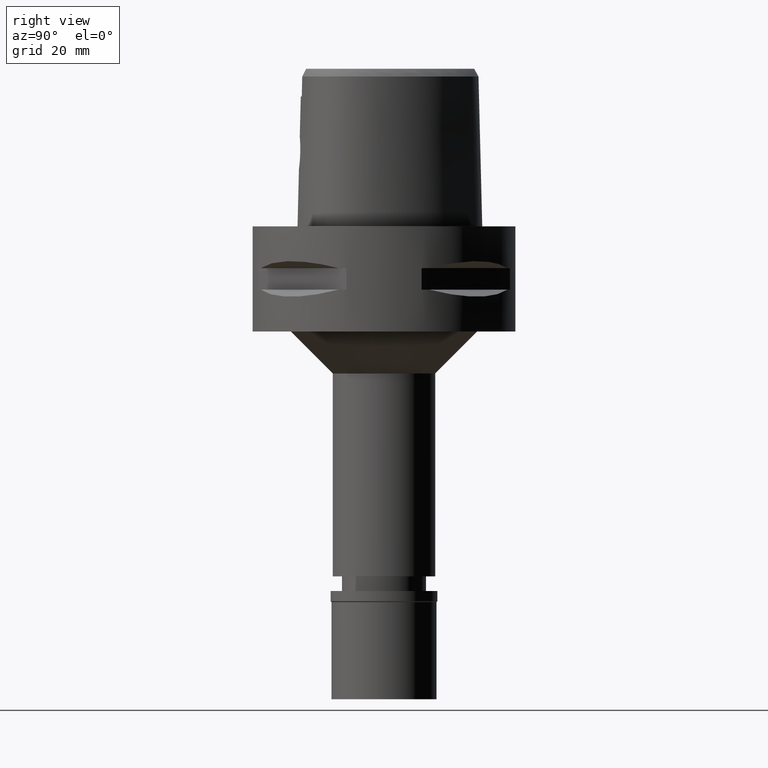
[diagram: clean part render]
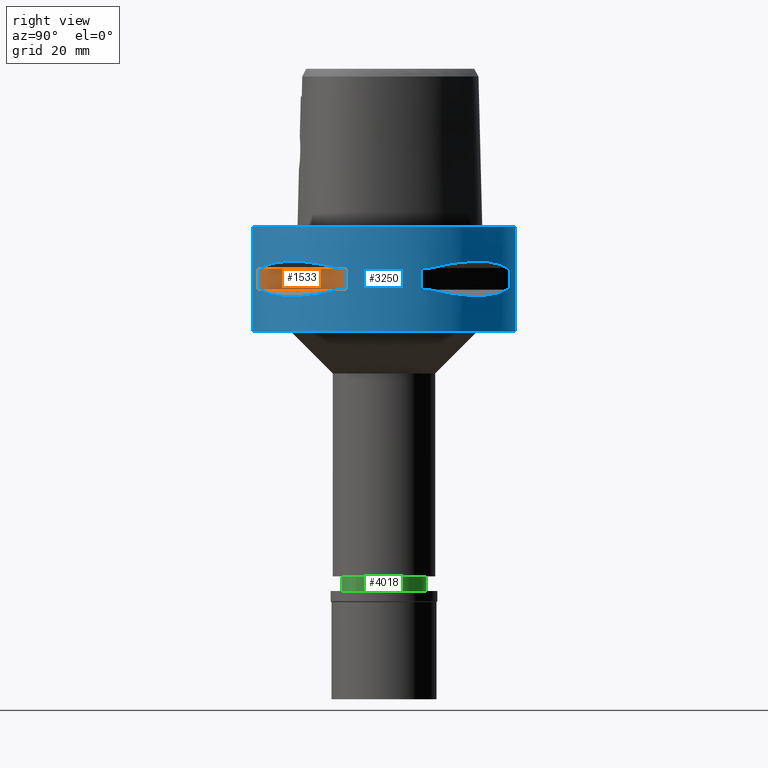
[diagram: same view with three faces highlighted in distinct colors, each labeled with its STEP entity id]
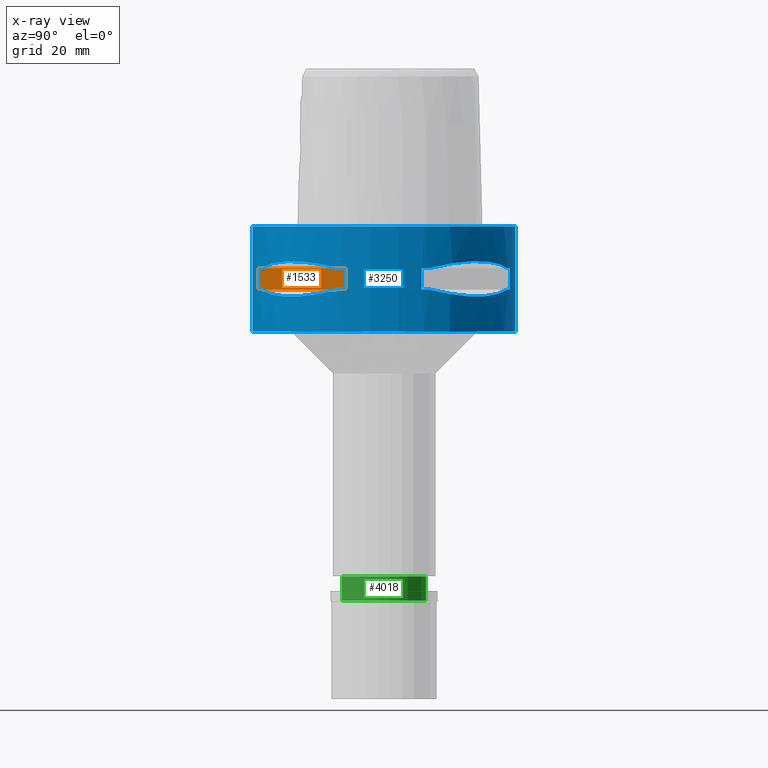
[diagram: x-ray of the same camera — body ghosted, the three highlighted faces saturated]
A machine part, right view with three faces highlighted in distinct colors.
The next image is the same camera in x-ray (body ghosted, the three faces saturated) — at least one of them is partly hidden behind the body in this view.
Their STEP definitions:

[orange] entity #1533 — the highlighted planar face has unit normal (-0.7071, 0.7071, 0).
#42 = CARTESIAN_POINT ( 'NONE',  ( 7.159921374230999724, -23.95277699797999915, -7.950000000000000178 ) ) ;
#336 = EDGE_CURVE ( 'NONE', #2697, #411, #3253, .T. ) ;
#411 = VERTEX_POINT ( 'NONE', #4355 ) ;
#518 = CARTESIAN_POINT ( 'NONE',  ( 23.95277699797999915, -7.159921374235000080, -12.05000000000000071 ) ) ;
#941 = DIRECTION ( 'NONE',  ( 0.7071067811865474617, 0.7071067811865474617, 0.0000000000000000000 ) ) ;
#1100 = CARTESIAN_POINT ( 'NONE',  ( 23.95277699797999915, -7.159921374230999724, -7.950000000000000178 ) ) ;
#1126 = LINE ( 'NONE', #42, #3144 ) ;
#1456 = EDGE_CURVE ( 'NONE', #2697, #1659, #1126, .T. ) ;
#1533 = ADVANCED_FACE ( 'NONE', ( #4295 ), #4712, .F. ) ;
#1570 = DIRECTION ( 'NONE',  ( 0.7071067811865474617, 0.7071067811865474617, 0.0000000000000000000 ) ) ;
#1659 = VERTEX_POINT ( 'NONE', #1100 ) ;
#1717 = DIRECTION ( 'NONE',  ( 0.0000000000000000000, 0.0000000000000000000, -1.000000000000000000 ) ) ;
#1772 = DIRECTION ( 'NONE',  ( 0.0000000000000000000, 0.0000000000000000000, 1.000000000000000000 ) ) ;
#1778 = ORIENTED_EDGE ( 'NONE', *, *, #336, .T. ) ;
#1885 = AXIS2_PLACEMENT_3D ( 'NONE', #2405, #2868, #4764 ) ;
#2014 = CARTESIAN_POINT ( 'NONE',  ( 7.159921374230999724, -23.95277699797999915, -12.05000000000000071 ) ) ;
#2042 = EDGE_CURVE ( 'NONE', #4400, #1659, #4469, .T. ) ;
#2405 = CARTESIAN_POINT ( 'NONE',  ( 26.16295090389999700, -4.949747468305999654, -7.950000000000000178 ) ) ;
#2491 = CARTESIAN_POINT ( 'NONE',  ( 7.159921374230999724, -23.95277699797999915, -7.950000000000000178 ) ) ;
#2586 = VECTOR ( 'NONE', #1717, 1000.000000000000000 ) ;
#2697 = VERTEX_POINT ( 'NONE', #3585 ) ;
#2717 = EDGE_CURVE ( 'NONE', #411, #4400, #2840, .T. ) ;
#2737 = VECTOR ( 'NONE', #941, 1000.000000000000114 ) ;
#2840 = LINE ( 'NONE', #2014, #2737 ) ;
#2868 = DIRECTION ( 'NONE',  ( -0.7071067811865475727, 0.7071067811865475727, 0.0000000000000000000 ) ) ;
#3144 = VECTOR ( 'NONE', #1570, 1000.000000000000114 ) ;
#3253 = LINE ( 'NONE', #2491, #2586 ) ;
#3308 = ORIENTED_EDGE ( 'NONE', *, *, #1456, .F. ) ;
#3585 = CARTESIAN_POINT ( 'NONE',  ( 7.159921374235000080, -23.95277699797999915, -7.950000000000000178 ) ) ;
#3618 = ORIENTED_EDGE ( 'NONE', *, *, #2042, .T. ) ;
#3760 = ORIENTED_EDGE ( 'NONE', *, *, #2717, .T. ) ;
#4094 = CARTESIAN_POINT ( 'NONE',  ( 23.95277699797999915, -7.159921374230999724, -12.05000000000000071 ) ) ;
#4167 = EDGE_LOOP ( 'NONE', ( #3308, #1778, #3760, #3618 ) ) ;
#4295 = FACE_OUTER_BOUND ( 'NONE', #4167, .T. ) ;
#4355 = CARTESIAN_POINT ( 'NONE',  ( 7.159921374230999724, -23.95277699797999915, -12.05000000000000071 ) ) ;
#4400 = VERTEX_POINT ( 'NONE', #518 ) ;
#4431 = VECTOR ( 'NONE', #1772, 1000.000000000000000 ) ;
#4469 = LINE ( 'NONE', #4094, #4431 ) ;
#4712 = PLANE ( 'NONE',  #1885 ) ;
#4764 = DIRECTION ( 'NONE',  ( 0.0000000000000000000, 0.0000000000000000000, 1.000000000000000000 ) ) ;

[blue] entity #3250 — the highlighted cylindrical surface (partial cylindrical patch) has radius 25 mm, axis along (0, 0, -1).
#23 = CARTESIAN_POINT ( 'NONE',  ( 8.646484890751999330, 23.45715880140000209, -12.05000000000000071 ) ) ;
#87 = CARTESIAN_POINT ( 'NONE',  ( 10.36314631865839964, -22.82438450743505598, -7.507504930511911923 ) ) ;
#110 = CIRCLE ( 'NONE', #187, 25.00000000000001066 ) ;
#118 = EDGE_CURVE ( 'NONE', #2697, #4893, #3695, .T. ) ;
#159 = CARTESIAN_POINT ( 'NONE',  ( 21.20561591939435786, 13.24197703503935486, -13.00691327926270446 ) ) ;
#175 = DIRECTION ( 'NONE',  ( 0.9581110799190402094, -0.2863968549694120291, 0.0000000000000000000 ) ) ;
#187 = AXIS2_PLACEMENT_3D ( 'NONE', #707, #2234, #3751 ) ;
#194 = CIRCLE ( 'NONE', #2683, 25.00000000000001066 ) ;
#210 = CARTESIAN_POINT ( 'NONE',  ( 23.13678124604550845, 9.515641234313701347, -12.27403800213050111 ) ) ;
#268 = CARTESIAN_POINT ( 'NONE',  ( 8.646484890751999330, 23.45715880140000209, -7.949999999998999201 ) ) ;
#297 = DIRECTION ( 'NONE',  ( 0.2863968549694120291, -0.9581110799190402094, 0.0000000000000000000 ) ) ;
#327 = DIRECTION ( 'NONE',  ( 0.9581110799190402094, 0.2863968549694120291, 0.0000000000000000000 ) ) ;
#336 = EDGE_CURVE ( 'NONE', #2697, #411, #3253, .T. ) ;
#342 = ORIENTED_EDGE ( 'NONE', *, *, #1264, .T. ) ;
#357 = ORIENTED_EDGE ( 'NONE', *, *, #703, .T. ) ;
#388 = ORIENTED_EDGE ( 'NONE', *, *, #663, .F. ) ;
#411 = VERTEX_POINT ( 'NONE', #4355 ) ;
#418 = CARTESIAN_POINT ( 'NONE',  ( 0.0000000000000000000, 1.274857317911999787E-14, -7.950000000000000178 ) ) ;
#439 = CARTESIAN_POINT ( 'NONE',  ( 13.60713573003037880, 20.97251445226597966, -13.06082541678103404 ) ) ;
#449 = VERTEX_POINT ( 'NONE', #690 ) ;
#513 = VECTOR ( 'NONE', #766, 1000.000000000000000 ) ;
#518 = CARTESIAN_POINT ( 'NONE',  ( 23.95277699797999915, -7.159921374235000080, -12.05000000000000071 ) ) ;
#524 = CIRCLE ( 'NONE', #1487, 24.99999999999999645 ) ;
#533 = CARTESIAN_POINT ( 'NONE',  ( 0.0000000000000000000, 1.274857317911999787E-14, -12.05000000000000071 ) ) ;
#572 = ORIENTED_EDGE ( 'NONE', *, *, #3749, .T. ) ;
#600 = VERTEX_POINT ( 'NONE', #1464 ) ;
#629 = VERTEX_POINT ( 'NONE', #1084 ) ;
#645 = CARTESIAN_POINT ( 'NONE',  ( 21.99328990740119139, -12.03062603421341770, -12.83394786307044022 ) ) ;
#653 = VERTEX_POINT ( 'NONE', #713 ) ;
#663 = EDGE_CURVE ( 'NONE', #4298, #653, #1894, .T. ) ;
#690 = CARTESIAN_POINT ( 'NONE',  ( 0.0000000000000000000, -25.00000000000000000, 0.0000000000000000000 ) ) ;
#703 = EDGE_CURVE ( 'NONE', #1738, #3215, #4196, .T. ) ;
#707 = CARTESIAN_POINT ( 'NONE',  ( 0.0000000000000000000, 1.274857317911999787E-14, -12.05000000000000071 ) ) ;
#713 = CARTESIAN_POINT ( 'NONE',  ( 23.95277699797999915, 7.159921374230999724, -12.05000000000000071 ) ) ;
#735 = FACE_OUTER_BOUND ( 'NONE', #3155, .T. ) ;
#740 = DIRECTION ( 'NONE',  ( 0.0000000000000000000, 0.0000000000000000000, 1.000000000000000000 ) ) ;
#766 = DIRECTION ( 'NONE',  ( 0.0000000000000000000, 0.0000000000000000000, -1.000000000000000000 ) ) ;
#813 = CARTESIAN_POINT ( 'NONE',  ( 23.45715880140000209, -8.646484890751999330, -7.949999999998999201 ) ) ;
#833 = EDGE_CURVE ( 'NONE', #4893, #3885, #1225, .T. ) ;
#835 = CARTESIAN_POINT ( 'NONE',  ( 22.82437128824116712, -10.36318218117755841, -7.507495686413086844 ) ) ;
#927 = DIRECTION ( 'NONE',  ( 0.0000000000000000000, 0.0000000000000000000, -1.000000000000000000 ) ) ;
#955 = ORIENTED_EDGE ( 'NONE', *, *, #3807, .T. ) ;
#992 = CARTESIAN_POINT ( 'NONE',  ( 20.97251445226583755, -13.60713573003076071, -13.06082541678112641 ) ) ;
#1052 = CARTESIAN_POINT ( 'NONE',  ( 0.0000000000000000000, 1.274857317911999787E-14, -20.00000000000000000 ) ) ;
#1059 = EDGE_CURVE ( 'NONE', #4400, #2320, #1636, .T. ) ;
#1068 = CARTESIAN_POINT ( 'NONE',  ( 10.36318218122983481, 22.82437128822192207, -7.507495686399606960 ) ) ;
#1084 = CARTESIAN_POINT ( 'NONE',  ( 0.0000000000000000000, 25.00000000000000000, 0.0000000000000000000 ) ) ;
#1090 = CARTESIAN_POINT ( 'NONE',  ( 20.56020460723486565, -14.22535762328174691, -13.14488865845287080 ) ) ;
#1096 = CARTESIAN_POINT ( 'NONE',  ( 16.42437865151178045, 18.93096040781560063, -6.622496303226939496 ) ) ;
#1100 = CARTESIAN_POINT ( 'NONE',  ( 23.95277699797999915, -7.159921374230999724, -7.950000000000000178 ) ) ;
#1154 = ORIENTED_EDGE ( 'NONE', *, *, #336, .F. ) ;
#1165 = CARTESIAN_POINT ( 'NONE',  ( 20.06074199769976829, -15.02698525043415145, -6.733118915137212390 ) ) ;
#1198 = CARTESIAN_POINT ( 'NONE',  ( 7.159921374235000080, 23.95277699797999915, -12.05000000000000071 ) ) ;
#1201 = CARTESIAN_POINT ( 'NONE',  ( 13.90573822668135406, 20.77616787493428774, -13.10257122103294058 ) ) ;
#1203 = DIRECTION ( 'NONE',  ( 0.0000000000000000000, 0.0000000000000000000, -1.000000000000000000 ) ) ;
#1225 = B_SPLINE_CURVE_WITH_KNOTS ( 'NONE', 3,
 ( #2733, #87, #3434, #4586, #1936, #3123, #1165, #3881, #835, #2412 ),
 .UNSPECIFIED., .F., .F.,
 ( 4, 2, 2, 2, 4 ),
 ( 0.0000000000000000000, 0.2500000000000000000, 0.5000000000000000000, 0.7500000000000000000, 1.000000000000000000 ),
 .UNSPECIFIED. ) ;
#1231 = AXIS2_PLACEMENT_3D ( 'NONE', #1052, #2585, #4898 ) ;
#1264 = EDGE_CURVE ( 'NONE', #3915, #4880, #3074, .T. ) ;
#1315 = AXIS2_PLACEMENT_3D ( 'NONE', #3566, #2399, #3913 ) ;
#1355 = CARTESIAN_POINT ( 'NONE',  ( 21.00321793043583796, 13.55971422200765630, -13.05400030967367897 ) ) ;
#1362 = CARTESIAN_POINT ( 'NONE',  ( 13.55971422200820520, -21.00321793043535479, -13.05400030967370206 ) ) ;
#1421 = CARTESIAN_POINT ( 'NONE',  ( 20.88268233906207172, -13.74471461761599400, -13.08031795579753087 ) ) ;
#1429 = ORIENTED_EDGE ( 'NONE', *, *, #2774, .F. ) ;
#1447 = CARTESIAN_POINT ( 'NONE',  ( 15.02698525050126044, 20.06074199764951871, -6.733118915116993008 ) ) ;
#1452 = ORIENTED_EDGE ( 'NONE', *, *, #3186, .T. ) ;
#1464 = CARTESIAN_POINT ( 'NONE',  ( 23.45715880140000209, 8.646484890751999330, -7.949999999998999201 ) ) ;
#1476 = CARTESIAN_POINT ( 'NONE',  ( 20.06077645874710313, 15.02693924547574866, -6.733132781305682713 ) ) ;
#1487 = AXIS2_PLACEMENT_3D ( 'NONE', #4522, #4886, #327 ) ;
#1512 = B_SPLINE_CURVE_WITH_KNOTS ( 'NONE', 3,
 ( #4044, #1826, #2989, #3311, #4838, #2601, #1794, #4068, #3357, #1362, #4408, #2549, #1849, #3664, #4518, #1090, #4440, #1421, #2881, #2938, #992, #645, #2172, #3335 ),
 .UNSPECIFIED., .F., .F.,
 ( 4, 1, 1, 1, 1, 1, 2, 2, 2, 1, 1, 1, 1, 1, 2, 2, 4 ),
 ( 0.0000000000000000000, 0.1250000000000068834, 0.1875000000000101308, 0.2187500000000117406, 0.2343750000000125733, 0.2421875000000129341, 0.2460937500000130174, 0.2500000000000131006, 0.5000000000000111022, 0.6250000000000101030, 0.6875000000000099920, 0.7187500000000099920, 0.7343750000000099920, 0.7421875000000098810, 0.7460937500000098810, 0.7500000000000098810, 1.000000000000000000 ),
 .UNSPECIFIED. ) ;
#1520 = FACE_BOUND ( 'NONE', #4693, .T. ) ;
#1556 = AXIS2_PLACEMENT_3D ( 'NONE', #2547, #740, #297 ) ;
#1563 = CARTESIAN_POINT ( 'NONE',  ( 7.159921374230999724, 23.95277699797999915, -12.05000000000000071 ) ) ;
#1590 = ORIENTED_EDGE ( 'NONE', *, *, #3220, .T. ) ;
#1591 = CARTESIAN_POINT ( 'NONE',  ( 0.0000000000000000000, 25.00000000000000000, -20.00000000000000000 ) ) ;
#1610 = CARTESIAN_POINT ( 'NONE',  ( 16.07509500019029502, 19.18226349638565509, -13.33749867751885532 ) ) ;
#1636 = CIRCLE ( 'NONE', #4897, 24.99999999999999645 ) ;
#1659 = VERTEX_POINT ( 'NONE', #1100 ) ;
#1717 = DIRECTION ( 'NONE',  ( 0.0000000000000000000, 0.0000000000000000000, -1.000000000000000000 ) ) ;
#1738 = VERTEX_POINT ( 'NONE', #1198 ) ;
#1740 = CARTESIAN_POINT ( 'NONE',  ( 21.41803043591995959, 12.89853354823032738, -12.95342092614324869 ) ) ;
#1758 = ORIENTED_EDGE ( 'NONE', *, *, #2042, .F. ) ;
#1772 = DIRECTION ( 'NONE',  ( 0.0000000000000000000, 0.0000000000000000000, 1.000000000000000000 ) ) ;
#1794 = CARTESIAN_POINT ( 'NONE',  ( 13.41274673326371314, -21.09754014382099285, -13.03250796600744721 ) ) ;
#1808 = EDGE_CURVE ( 'NONE', #629, #449, #3713, .T. ) ;
#1826 = CARTESIAN_POINT ( 'NONE',  ( 9.515641234297431694, -23.13678124605150188, -12.27403800212630536 ) ) ;
#1849 = CARTESIAN_POINT ( 'NONE',  ( 18.30096971348435630, -17.05439749817190176, -13.37751056790094850 ) ) ;
#1863 = CARTESIAN_POINT ( 'NONE',  ( 0.0000000000000000000, 1.274857317911999787E-14, 4.100000000000000533 ) ) ;
#1865 = EDGE_CURVE ( 'NONE', #600, #2729, #4141, .T. ) ;
#1893 = CYLINDRICAL_SURFACE ( 'NONE', #2987, 25.00000000000000000 ) ;
#1894 = LINE ( 'NONE', #2242, #513 ) ;
#1931 = ORIENTED_EDGE ( 'NONE', *, *, #2539, .F. ) ;
#1935 = DIRECTION ( 'NONE',  ( 0.9382863520558295534, 0.3458593956303108730, 0.0000000000000000000 ) ) ;
#1936 = CARTESIAN_POINT ( 'NONE',  ( 16.42437865147233111, -18.93096040785503220, -6.622505547239577517 ) ) ;
#1937 = CARTESIAN_POINT ( 'NONE',  ( 0.0000000000000000000, -25.00000000000000000, -20.00000000000000000 ) ) ;
#1939 = VERTEX_POINT ( 'NONE', #2552 ) ;
#1954 = EDGE_CURVE ( 'NONE', #4298, #600, #524, .T. ) ;
#2042 = EDGE_CURVE ( 'NONE', #4400, #1659, #4469, .T. ) ;
#2073 = CARTESIAN_POINT ( 'NONE',  ( 23.45715880140000209, -8.646484890751999330, -12.05000000000000071 ) ) ;
#2143 = EDGE_CURVE ( 'NONE', #1738, #3098, #3045, .T. ) ;
#2169 = ORIENTED_EDGE ( 'NONE', *, *, #2143, .F. ) ;
#2172 = CARTESIAN_POINT ( 'NONE',  ( 22.81626994452193458, -10.38516041956038727, -12.49816953211166037 ) ) ;
#2188 = CARTESIAN_POINT ( 'NONE',  ( 13.62920640916679993, 20.95817024473859291, -13.06397973560673265 ) ) ;
#2190 = DIRECTION ( 'NONE',  ( 0.0000000000000000000, 0.0000000000000000000, -1.000000000000000000 ) ) ;
#2217 = CARTESIAN_POINT ( 'NONE',  ( 12.03062603423778754, 21.99328990739221013, -12.83394786307672675 ) ) ;
#2234 = DIRECTION ( 'NONE',  ( 0.0000000000000000000, 0.0000000000000000000, -1.000000000000000000 ) ) ;
#2241 = DIRECTION ( 'NONE',  ( 0.9382863520558295534, -0.3458593956303108730, 0.0000000000000000000 ) ) ;
#2242 = CARTESIAN_POINT ( 'NONE',  ( 23.95277699797999915, 7.159921374230999724, -7.950000000000000178 ) ) ;
#2283 = AXIS2_PLACEMENT_3D ( 'NONE', #4142, #2663, #1935 ) ;
#2295 = CARTESIAN_POINT ( 'NONE',  ( 0.0000000000000000000, 1.274857317911999787E-14, -12.05000000000000071 ) ) ;
#2320 = VERTEX_POINT ( 'NONE', #2073 ) ;
#2388 = DIRECTION ( 'NONE',  ( 0.2863968549694120291, 0.9581110799190402094, 0.0000000000000000000 ) ) ;
#2399 = DIRECTION ( 'NONE',  ( 0.0000000000000000000, 0.0000000000000000000, -1.000000000000000000 ) ) ;
#2412 = CARTESIAN_POINT ( 'NONE',  ( 23.45715880140000209, -8.646484890751999330, -7.949999999998999201 ) ) ;
#2431 = AXIS2_PLACEMENT_3D ( 'NONE', #3283, #3609, #3313 ) ;
#2489 = CARTESIAN_POINT ( 'NONE',  ( 23.45715880140000209, 8.646484890756999775, -12.05000000000000071 ) ) ;
#2491 = CARTESIAN_POINT ( 'NONE',  ( 7.159921374230999724, -23.95277699797999915, -7.950000000000000178 ) ) ;
#2515 = CARTESIAN_POINT ( 'NONE',  ( 17.05439749817592343, 18.30096971347850499, -13.37751056790020598 ) ) ;
#2516 = CARTESIAN_POINT ( 'NONE',  ( 0.0000000000000000000, -25.00000000000000000, 0.0000000000000000000 ) ) ;
#2539 = EDGE_CURVE ( 'NONE', #629, #4880, #3516, .T. ) ;
#2547 = CARTESIAN_POINT ( 'NONE',  ( 0.0000000000000000000, 1.274857317911999787E-14, -7.950000000000000178 ) ) ;
#2549 = CARTESIAN_POINT ( 'NONE',  ( 16.43106916202457057, -18.92421359264944769, -13.37747608848233760 ) ) ;
#2552 = CARTESIAN_POINT ( 'NONE',  ( 8.646484890756999775, -23.45715880140000209, -12.05000000000000071 ) ) ;
#2566 = CARTESIAN_POINT ( 'NONE',  ( 7.159921374230999724, 23.95277699797999915, -7.950000000000000178 ) ) ;
#2576 = CARTESIAN_POINT ( 'NONE',  ( 18.93096040781554024, 16.42437865151185505, -6.622505547253058289 ) ) ;
#2585 = DIRECTION ( 'NONE',  ( 0.0000000000000000000, 0.0000000000000000000, 1.000000000000000000 ) ) ;
#2586 = VECTOR ( 'NONE', #1717, 1000.000000000000000 ) ;
#2590 = CARTESIAN_POINT ( 'NONE',  ( 13.67544437571146609, 20.92801700160250533, -13.07054629644086674 ) ) ;
#2601 = CARTESIAN_POINT ( 'NONE',  ( 13.24197703503267931, -21.20561591939681634, -13.00691327926098495 ) ) ;
#2663 = DIRECTION ( 'NONE',  ( 0.0000000000000000000, 0.0000000000000000000, -1.000000000000000000 ) ) ;
#2683 = AXIS2_PLACEMENT_3D ( 'NONE', #418, #4191, #2241 ) ;
#2697 = VERTEX_POINT ( 'NONE', #3585 ) ;
#2706 = CARTESIAN_POINT ( 'NONE',  ( 0.0000000000000000000, 25.00000000000000000, 0.0000000000000000000 ) ) ;
#2711 = CARTESIAN_POINT ( 'NONE',  ( 14.22535762328483067, 20.56020460723039278, -13.14488865845230592 ) ) ;
#2728 = DIRECTION ( 'NONE',  ( 0.0000000000000000000, 0.0000000000000000000, 1.000000000000000000 ) ) ;
#2729 = VERTEX_POINT ( 'NONE', #268 ) ;
#2730 = CARTESIAN_POINT ( 'NONE',  ( 13.74471461761685198, 20.88268233906084248, -13.08031795579737455 ) ) ;
#2733 = CARTESIAN_POINT ( 'NONE',  ( 8.646484890751999330, -23.45715880140000209, -7.949999999998999201 ) ) ;
#2751 = VECTOR ( 'NONE', #3274, 1000.000000000000000 ) ;
#2762 = VECTOR ( 'NONE', #2728, 1000.000000000000000 ) ;
#2774 = EDGE_CURVE ( 'NONE', #1939, #2320, #1512, .T. ) ;
#2822 = AXIS2_PLACEMENT_3D ( 'NONE', #2295, #2190, #2388 ) ;
#2847 = ORIENTED_EDGE ( 'NONE', *, *, #1059, .T. ) ;
#2876 = CARTESIAN_POINT ( 'NONE',  ( 20.02826730452214932, 15.06560254769159712, -13.27075471794772277 ) ) ;
#2881 = CARTESIAN_POINT ( 'NONE',  ( 20.92801700160322298, -13.67544437571097404, -13.07054629644096444 ) ) ;
#2904 = VERTEX_POINT ( 'NONE', #3907 ) ;
#2938 = CARTESIAN_POINT ( 'NONE',  ( 20.95817024473895174, -13.62920640916654591, -13.06397973560678061 ) ) ;
#2987 = AXIS2_PLACEMENT_3D ( 'NONE', #1863, #1203, #3809 ) ;
#2989 = CARTESIAN_POINT ( 'NONE',  ( 10.78455809745186755, -22.58788056562029922, -12.56798337782941566 ) ) ;
#2993 = CARTESIAN_POINT ( 'NONE',  ( 22.00754773658079344, 11.99631184311074428, -7.175632472892017333 ) ) ;
#3001 = ORIENTED_EDGE ( 'NONE', *, *, #3017, .T. ) ;
#3017 = EDGE_CURVE ( 'NONE', #449, #3915, #4434, .T. ) ;
#3044 = ORIENTED_EDGE ( 'NONE', *, *, #118, .T. ) ;
#3045 = LINE ( 'NONE', #1563, #2762 ) ;
#3046 = EDGE_LOOP ( 'NONE', ( #955, #2169, #357, #4327, #1590, #388, #3218, #3300 ) ) ;
#3074 = CIRCLE ( 'NONE', #1231, 25.00000000000000000 ) ;
#3098 = VERTEX_POINT ( 'NONE', #2566 ) ;
#3123 = CARTESIAN_POINT ( 'NONE',  ( 18.93096040785499667, -16.42437865147237730, -6.622496303240421156 ) ) ;
#3155 = EDGE_LOOP ( 'NONE', ( #4765, #3001, #342, #1931 ) ) ;
#3186 = EDGE_CURVE ( 'NONE', #3885, #1659, #194, .T. ) ;
#3215 = VERTEX_POINT ( 'NONE', #23 ) ;
#3218 = ORIENTED_EDGE ( 'NONE', *, *, #1954, .T. ) ;
#3220 = EDGE_CURVE ( 'NONE', #2904, #653, #4423, .T. ) ;
#3250 = ADVANCED_FACE ( 'NONE', ( #735, #1520, #4627 ), #1893, .T. ) ;
#3251 = CARTESIAN_POINT ( 'NONE',  ( 21.05082155772089436, 13.48572973711263323, -13.04323036965343618 ) ) ;
#3253 = LINE ( 'NONE', #2491, #2586 ) ;
#3274 = DIRECTION ( 'NONE',  ( 0.0000000000000000000, 0.0000000000000000000, -1.000000000000000000 ) ) ;
#3283 = CARTESIAN_POINT ( 'NONE',  ( 0.0000000000000000000, 1.274857317911999787E-14, -7.950000000000000178 ) ) ;
#3300 = ORIENTED_EDGE ( 'NONE', *, *, #1865, .T. ) ;
#3311 = CARTESIAN_POINT ( 'NONE',  ( 12.20403021317722292, -21.82791133048418786, -12.83722430138600323 ) ) ;
#3313 = DIRECTION ( 'NONE',  ( 0.3458593956303108730, 0.9382863520558295534, 0.0000000000000000000 ) ) ;
#3335 = CARTESIAN_POINT ( 'NONE',  ( 23.45715880140000209, -8.646484890751999330, -12.05000000000000071 ) ) ;
#3357 = CARTESIAN_POINT ( 'NONE',  ( 13.53433973752400554, -21.01958685664054372, -13.05032380590162333 ) ) ;
#3404 = B_SPLINE_CURVE_WITH_KNOTS ( 'NONE', 3,
 ( #2489, #210, #4458, #3960, #1740, #159, #4005, #3251, #4772, #1355, #2876, #4401, #2515, #1610, #3828, #2711, #1201, #2730, #2590, #2188, #439, #2217, #3483, #4115 ),
 .UNSPECIFIED., .F., .F.,
 ( 4, 1, 1, 1, 1, 1, 2, 2, 2, 1, 1, 1, 1, 1, 2, 2, 4 ),
 ( 0.0000000000000000000, 0.1249999999999982236, 0.1874999999999974465, 0.2187499999999970302, 0.2343749999999969469, 0.2421874999999968081, 0.2460937499999968359, 0.2499999999999968914, 0.4999999999999973355, 0.6249999999999973355, 0.6874999999999976685, 0.7187499999999978906, 0.7343749999999980016, 0.7421874999999980016, 0.7460937499999978906, 0.7499999999999978906, 1.000000000000000000 ),
 .UNSPECIFIED. ) ;
#3434 = CARTESIAN_POINT ( 'NONE',  ( 11.99631184318432275, -22.00754773654066199, -7.175632472871786405 ) ) ;
#3453 = CARTESIAN_POINT ( 'NONE',  ( 8.646484890751999330, -23.45715880140000209, -7.949999999998999201 ) ) ;
#3483 = CARTESIAN_POINT ( 'NONE',  ( 10.38516041958474645, 22.81626994451295332, -12.49816953211793802 ) ) ;
#3516 = LINE ( 'NONE', #2706, #3854 ) ;
#3539 = CIRCLE ( 'NONE', #2431, 25.00000000000001066 ) ;
#3566 = CARTESIAN_POINT ( 'NONE',  ( 0.0000000000000000000, 1.274857317911999787E-14, 0.0000000000000000000 ) ) ;
#3585 = CARTESIAN_POINT ( 'NONE',  ( 7.159921374235000080, -23.95277699797999915, -7.950000000000000178 ) ) ;
#3609 = DIRECTION ( 'NONE',  ( 0.0000000000000000000, 0.0000000000000000000, 1.000000000000000000 ) ) ;
#3664 = CARTESIAN_POINT ( 'NONE',  ( 19.18226349639588690, -16.07509500018327131, -13.33749867752016449 ) ) ;
#3695 = CIRCLE ( 'NONE', #1556, 24.99999999999999645 ) ;
#3713 = CIRCLE ( 'NONE', #1315, 25.00000000000000000 ) ;
#3743 = CARTESIAN_POINT ( 'NONE',  ( 23.45715880140000209, 8.646484890751999330, -7.949999999998999201 ) ) ;
#3749 = EDGE_CURVE ( 'NONE', #1939, #411, #110, .T. ) ;
#3751 = DIRECTION ( 'NONE',  ( 0.3458593956303108730, -0.9382863520558295534, 0.0000000000000000000 ) ) ;
#3807 = EDGE_CURVE ( 'NONE', #2729, #3098, #3539, .T. ) ;
#3809 = DIRECTION ( 'NONE',  ( 0.0000000000000000000, -1.000000000000000000, 0.0000000000000000000 ) ) ;
#3828 = CARTESIAN_POINT ( 'NONE',  ( 14.85488513038957592, 20.11654071401955335, -13.22076716108393413 ) ) ;
#3854 = VECTOR ( 'NONE', #4228, 1000.000000000000000 ) ;
#3881 = CARTESIAN_POINT ( 'NONE',  ( 22.00752022560862642, -11.99636231257075991, -7.175618606723545234 ) ) ;
#3885 = VERTEX_POINT ( 'NONE', #813 ) ;
#3907 = CARTESIAN_POINT ( 'NONE',  ( 23.45715880140000209, 8.646484890756999775, -12.05000000000000071 ) ) ;
#3913 = DIRECTION ( 'NONE',  ( 0.0000000000000000000, 1.000000000000000000, 0.0000000000000000000 ) ) ;
#3915 = VERTEX_POINT ( 'NONE', #1937 ) ;
#3960 = CARTESIAN_POINT ( 'NONE',  ( 21.82791133047632215, 12.20403021319857828, -12.83722430139150994 ) ) ;
#4005 = CARTESIAN_POINT ( 'NONE',  ( 21.09754014381971388, 13.41274673326716282, -13.03250796600833716 ) ) ;
#4044 = CARTESIAN_POINT ( 'NONE',  ( 8.646484890756999775, -23.45715880140000209, -12.05000000000000071 ) ) ;
#4047 = CARTESIAN_POINT ( 'NONE',  ( 8.646484890751999330, 23.45715880140000209, -7.949999999998999201 ) ) ;
#4068 = CARTESIAN_POINT ( 'NONE',  ( 13.48572973711064193, -21.05082155772163688, -13.04323036965292637 ) ) ;
#4094 = CARTESIAN_POINT ( 'NONE',  ( 23.95277699797999915, -7.159921374230999724, -12.05000000000000071 ) ) ;
#4115 = CARTESIAN_POINT ( 'NONE',  ( 8.646484890751999330, 23.45715880140000209, -12.05000000000000071 ) ) ;
#4130 = CARTESIAN_POINT ( 'NONE',  ( 11.99636231264435615, 22.00752022556853404, -7.175618606703325852 ) ) ;
#4141 = B_SPLINE_CURVE_WITH_KNOTS ( 'NONE', 3,
 ( #3743, #4785, #2993, #1476, #2576, #1096, #1447, #4130, #1068, #4047 ),
 .UNSPECIFIED., .F., .F.,
 ( 4, 2, 2, 2, 4 ),
 ( 0.0000000000000000000, 0.2500000000000000000, 0.5000000000000000000, 0.7500000000000000000, 1.000000000000000000 ),
 .UNSPECIFIED. ) ;
#4142 = CARTESIAN_POINT ( 'NONE',  ( 0.0000000000000000000, 1.274857317911999787E-14, -12.05000000000000071 ) ) ;
#4191 = DIRECTION ( 'NONE',  ( 0.0000000000000000000, 0.0000000000000000000, 1.000000000000000000 ) ) ;
#4196 = CIRCLE ( 'NONE', #2822, 24.99999999999999645 ) ;
#4228 = DIRECTION ( 'NONE',  ( 0.0000000000000000000, 0.0000000000000000000, -1.000000000000000000 ) ) ;
#4298 = VERTEX_POINT ( 'NONE', #4599 ) ;
#4327 = ORIENTED_EDGE ( 'NONE', *, *, #4777, .F. ) ;
#4355 = CARTESIAN_POINT ( 'NONE',  ( 7.159921374230999724, -23.95277699797999915, -12.05000000000000071 ) ) ;
#4400 = VERTEX_POINT ( 'NONE', #518 ) ;
#4401 = CARTESIAN_POINT ( 'NONE',  ( 18.92421359264142211, 16.43106916203626611, -13.37747608848383329 ) ) ;
#4408 = CARTESIAN_POINT ( 'NONE',  ( 15.06560254765663132, -20.02826730455345583, -13.27075471794622885 ) ) ;
#4423 = CIRCLE ( 'NONE', #2283, 25.00000000000001066 ) ;
#4431 = VECTOR ( 'NONE', #1772, 1000.000000000000000 ) ;
#4434 = LINE ( 'NONE', #2516, #2751 ) ;
#4440 = CARTESIAN_POINT ( 'NONE',  ( 20.77616787493668937, -13.90573822667970916, -13.10257122103325145 ) ) ;
#4458 = CARTESIAN_POINT ( 'NONE',  ( 22.58788056560981516, 10.78455809748034788, -12.56798337783676267 ) ) ;
#4469 = LINE ( 'NONE', #4094, #4431 ) ;
#4518 = CARTESIAN_POINT ( 'NONE',  ( 20.11654071402723432, -14.85488513038430192, -13.22076716108491290 ) ) ;
#4522 = CARTESIAN_POINT ( 'NONE',  ( 0.0000000000000000000, 1.274857317911999787E-14, -7.950000000000000178 ) ) ;
#4586 = CARTESIAN_POINT ( 'NONE',  ( 15.02693924554282034, -20.06077645869683579, -6.733132781285451784 ) ) ;
#4599 = CARTESIAN_POINT ( 'NONE',  ( 23.95277699797999915, 7.159921374235000080, -7.950000000000000178 ) ) ;
#4627 = FACE_BOUND ( 'NONE', #3046, .T. ) ;
#4693 = EDGE_LOOP ( 'NONE', ( #1452, #1758, #2847, #1429, #572, #1154, #3044, #4790 ) ) ;
#4765 = ORIENTED_EDGE ( 'NONE', *, *, #1808, .T. ) ;
#4772 = CARTESIAN_POINT ( 'NONE',  ( 21.01958685664017068, 13.53433973752500918, -13.05032380590188446 ) ) ;
#4777 = EDGE_CURVE ( 'NONE', #2904, #3215, #3404, .T. ) ;
#4785 = CARTESIAN_POINT ( 'NONE',  ( 22.82438450745431524, 10.36314631860615876, -7.507504930525397135 ) ) ;
#4790 = ORIENTED_EDGE ( 'NONE', *, *, #833, .T. ) ;
#4838 = CARTESIAN_POINT ( 'NONE',  ( 12.89853354821786624, -21.41803043592453548, -12.95342092614003349 ) ) ;
#4880 = VERTEX_POINT ( 'NONE', #1591 ) ;
#4886 = DIRECTION ( 'NONE',  ( 0.0000000000000000000, 0.0000000000000000000, 1.000000000000000000 ) ) ;
#4893 = VERTEX_POINT ( 'NONE', #3453 ) ;
#4897 = AXIS2_PLACEMENT_3D ( 'NONE', #533, #927, #175 ) ;
#4898 = DIRECTION ( 'NONE',  ( 0.0000000000000000000, -1.000000000000000000, 0.0000000000000000000 ) ) ;

[green] entity #4018 — the highlighted cylindrical surface (partial cylindrical patch) has radius 8 mm, axis along (0, 0, -1).
#16 = CARTESIAN_POINT ( 'NONE',  ( 0.0000000000000000000, -8.000000000000000000, -66.60000000000000853 ) ) ;
#62 = DIRECTION ( 'NONE',  ( 0.0000000000000000000, 0.0000000000000000000, -1.000000000000000000 ) ) ;
#104 = VERTEX_POINT ( 'NONE', #2986 ) ;
#163 = DIRECTION ( 'NONE',  ( 0.0000000000000000000, 0.0000000000000000000, -1.000000000000000000 ) ) ;
#446 = VECTOR ( 'NONE', #4476, 1000.000000000000000 ) ;
#541 = CARTESIAN_POINT ( 'NONE',  ( 0.0000000000000000000, -8.000000000000000000, -66.60000000000000853 ) ) ;
#553 = FACE_OUTER_BOUND ( 'NONE', #2362, .T. ) ;
#901 = DIRECTION ( 'NONE',  ( 0.0000000000000000000, 0.0000000000000000000, -1.000000000000000000 ) ) ;
#928 = DIRECTION ( 'NONE',  ( 0.0000000000000000000, -1.000000000000000000, 0.0000000000000000000 ) ) ;
#956 = CARTESIAN_POINT ( 'NONE',  ( 0.0000000000000000000, 8.000000000000000000, -66.60000000000000853 ) ) ;
#1286 = CARTESIAN_POINT ( 'NONE',  ( 0.0000000000000000000, 1.274857317911999787E-14, -71.20000000000000284 ) ) ;
#1468 = ORIENTED_EDGE ( 'NONE', *, *, #2380, .T. ) ;
#1690 = VERTEX_POINT ( 'NONE', #16 ) ;
#1789 = AXIS2_PLACEMENT_3D ( 'NONE', #2829, #901, #928 ) ;
#1899 = VERTEX_POINT ( 'NONE', #2965 ) ;
#1940 = AXIS2_PLACEMENT_3D ( 'NONE', #1286, #3589, #2095 ) ;
#1958 = DIRECTION ( 'NONE',  ( 0.0000000000000000000, 1.000000000000000000, 0.0000000000000000000 ) ) ;
#2095 = DIRECTION ( 'NONE',  ( 0.0000000000000000000, -1.000000000000000000, 0.0000000000000000000 ) ) ;
#2150 = CARTESIAN_POINT ( 'NONE',  ( 0.0000000000000000000, -8.000000000000000000, -71.20000000000000284 ) ) ;
#2362 = EDGE_LOOP ( 'NONE', ( #4284, #2930, #1468, #3647 ) ) ;
#2380 = EDGE_CURVE ( 'NONE', #3827, #104, #3367, .T. ) ;
#2829 = CARTESIAN_POINT ( 'NONE',  ( 0.0000000000000000000, 1.274857317911999787E-14, 4.100000000000000533 ) ) ;
#2930 = ORIENTED_EDGE ( 'NONE', *, *, #4390, .T. ) ;
#2965 = CARTESIAN_POINT ( 'NONE',  ( 0.0000000000000000000, 8.000000000000000000, -66.60000000000000853 ) ) ;
#2986 = CARTESIAN_POINT ( 'NONE',  ( 0.0000000000000000000, 8.000000000000000000, -71.20000000000000284 ) ) ;
#3180 = LINE ( 'NONE', #541, #3615 ) ;
#3223 = CYLINDRICAL_SURFACE ( 'NONE', #1789, 8.000000000000000000 ) ;
#3367 = CIRCLE ( 'NONE', #1940, 8.000000000000000000 ) ;
#3371 = AXIS2_PLACEMENT_3D ( 'NONE', #4855, #62, #1958 ) ;
#3589 = DIRECTION ( 'NONE',  ( 0.0000000000000000000, 0.0000000000000000000, 1.000000000000000000 ) ) ;
#3615 = VECTOR ( 'NONE', #163, 1000.000000000000000 ) ;
#3647 = ORIENTED_EDGE ( 'NONE', *, *, #3722, .F. ) ;
#3722 = EDGE_CURVE ( 'NONE', #1899, #104, #4179, .T. ) ;
#3827 = VERTEX_POINT ( 'NONE', #2150 ) ;
#4018 = ADVANCED_FACE ( 'NONE', ( #553 ), #3223, .T. ) ;
#4028 = CIRCLE ( 'NONE', #3371, 8.000000000000000000 ) ;
#4179 = LINE ( 'NONE', #956, #446 ) ;
#4284 = ORIENTED_EDGE ( 'NONE', *, *, #4819, .T. ) ;
#4390 = EDGE_CURVE ( 'NONE', #1690, #3827, #3180, .T. ) ;
#4476 = DIRECTION ( 'NONE',  ( 0.0000000000000000000, 0.0000000000000000000, -1.000000000000000000 ) ) ;
#4819 = EDGE_CURVE ( 'NONE', #1899, #1690, #4028, .T. ) ;
#4855 = CARTESIAN_POINT ( 'NONE',  ( 0.0000000000000000000, 1.274857317911999787E-14, -66.60000000000000853 ) ) ;